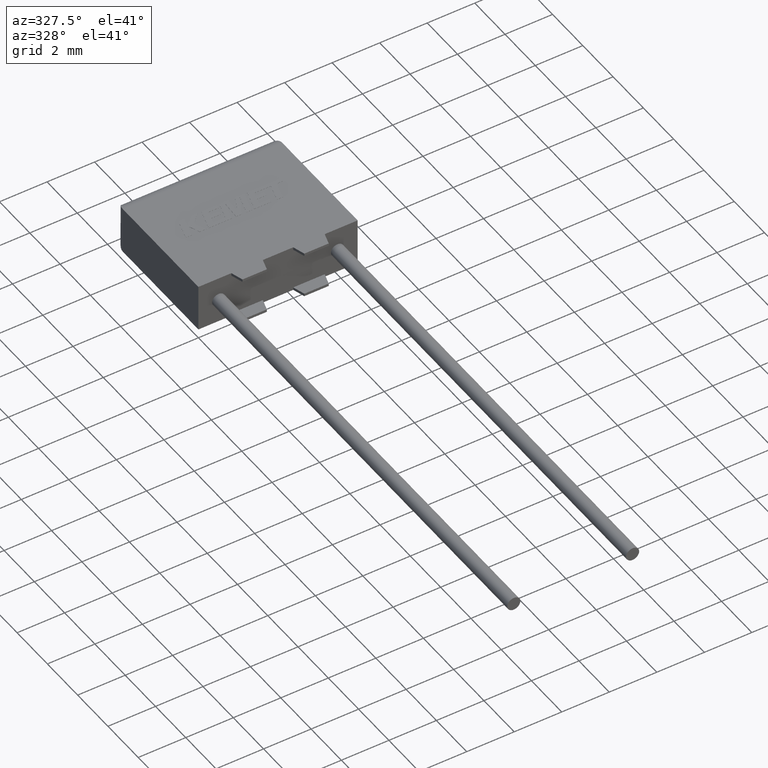
[diagram: clean part render]
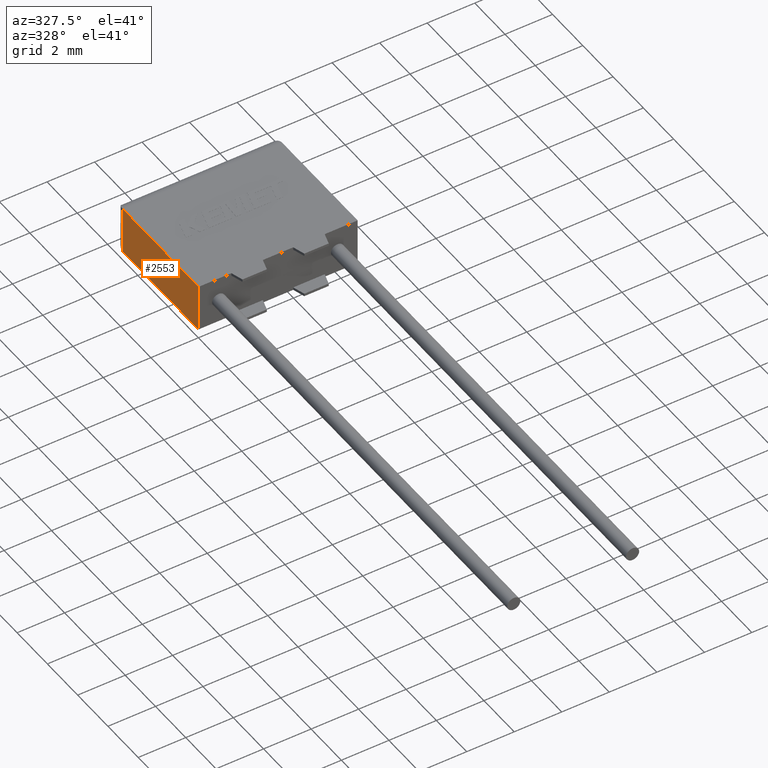
[diagram: same view with one face highlighted and labeled with its STEP entity id]
A machine part, auxiliary view. The second image highlights one B-rep face of the part: STEP entity #2553.
In plain terms, the highlighted planar face has unit normal (1, 0, 0).
Its self-contained STEP definition (entity closure, byte-faithful):
#14 = CARTESIAN_POINT ( 'NONE',  ( 0.0000000000000000000, 4.999999999999999100, 2.000000000000000000 ) ) ;
#50 = DIRECTION ( 'NONE',  ( -0.0000000000000000000, -0.0000000000000000000, -1.000000000000000000 ) ) ;
#240 = AXIS2_PLACEMENT_3D ( 'NONE', #2092, #2129, #2108 ) ;
#279 = DIRECTION ( 'NONE',  ( -0.0000000000000000000, -1.000000000000000000, -0.0000000000000000000 ) ) ;
#357 = PLANE ( 'NONE',  #240 ) ;
#525 = ORIENTED_EDGE ( 'NONE', *, *, #3228, .F. ) ;
#530 = VERTEX_POINT ( 'NONE', #3195 ) ;
#539 = EDGE_CURVE ( 'NONE', #530, #2439, #1732, .T. ) ;
#550 = VECTOR ( 'NONE', #279, 1000.000000000000000 ) ;
#903 = VECTOR ( 'NONE', #1466, 1000.000000000000000 ) ;
#947 = CARTESIAN_POINT ( 'NONE',  ( 0.0000000000000000000, 4.999999999999999100, 0.0000000000000000000 ) ) ;
#1010 = CARTESIAN_POINT ( 'NONE',  ( 0.0000000000000000000, 0.0000000000000000000, 2.000000000000000000 ) ) ;
#1151 = EDGE_CURVE ( 'NONE', #530, #2549, #2708, .T. ) ;
#1254 = DIRECTION ( 'NONE',  ( -0.0000000000000000000, -1.000000000000000000, -0.0000000000000000000 ) ) ;
#1432 = LINE ( 'NONE', #2513, #2803 ) ;
#1466 = DIRECTION ( 'NONE',  ( 0.0000000000000000000, 0.0000000000000000000, -1.000000000000000000 ) ) ;
#1502 = EDGE_LOOP ( 'NONE', ( #2170, #1955, #2244, #525 ) ) ;
#1732 = LINE ( 'NONE', #14, #903 ) ;
#1760 = CARTESIAN_POINT ( 'NONE',  ( 0.0000000000000000000, 0.0000000000000000000, 2.000000000000000000 ) ) ;
#1955 = ORIENTED_EDGE ( 'NONE', *, *, #539, .T. ) ;
#2092 = CARTESIAN_POINT ( 'NONE',  ( 0.0000000000000000000, 0.0000000000000000000, 2.000000000000000000 ) ) ;
#2108 = DIRECTION ( 'NONE',  ( 0.0000000000000000000, 0.0000000000000000000, -1.000000000000000000 ) ) ;
#2129 = DIRECTION ( 'NONE',  ( 1.000000000000000000, 0.0000000000000000000, 0.0000000000000000000 ) ) ;
#2170 = ORIENTED_EDGE ( 'NONE', *, *, #1151, .F. ) ;
#2244 = ORIENTED_EDGE ( 'NONE', *, *, #3192, .T. ) ;
#2439 = VERTEX_POINT ( 'NONE', #947 ) ;
#2471 = VERTEX_POINT ( 'NONE', #2933 ) ;
#2513 = CARTESIAN_POINT ( 'NONE',  ( 0.0000000000000000000, 0.0000000000000000000, 0.0000000000000000000 ) ) ;
#2549 = VERTEX_POINT ( 'NONE', #3111 ) ;
#2553 = ADVANCED_FACE ( 'NONE', ( #2558 ), #357, .F. ) ;
#2558 = FACE_OUTER_BOUND ( 'NONE', #1502, .T. ) ;
#2686 = LINE ( 'NONE', #1760, #3122 ) ;
#2708 = LINE ( 'NONE', #1010, #550 ) ;
#2803 = VECTOR ( 'NONE', #1254, 1000.000000000000000 ) ;
#2933 = CARTESIAN_POINT ( 'NONE',  ( 0.0000000000000000000, 0.0000000000000000000, 0.0000000000000000000 ) ) ;
#3111 = CARTESIAN_POINT ( 'NONE',  ( 0.0000000000000000000, 0.0000000000000000000, 2.000000000000000000 ) ) ;
#3122 = VECTOR ( 'NONE', #50, 1000.000000000000000 ) ;
#3192 = EDGE_CURVE ( 'NONE', #2439, #2471, #1432, .T. ) ;
#3195 = CARTESIAN_POINT ( 'NONE',  ( 0.0000000000000000000, 4.999999999999999100, 2.000000000000000000 ) ) ;
#3228 = EDGE_CURVE ( 'NONE', #2549, #2471, #2686, .T. ) ;